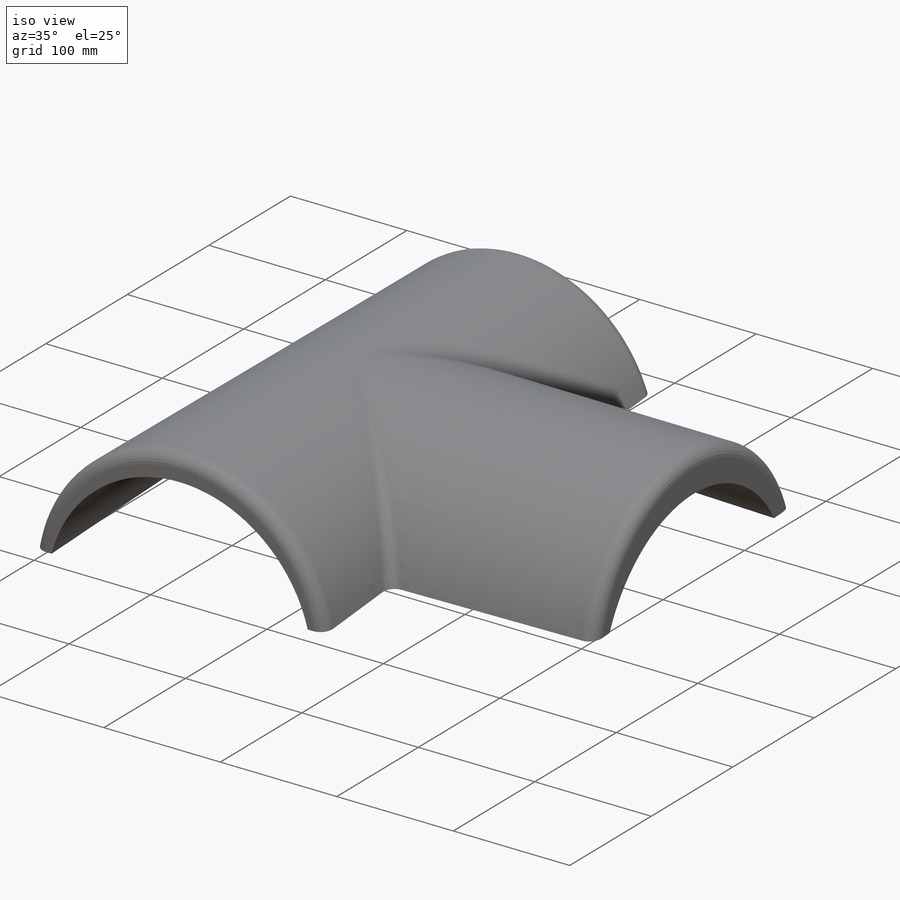
[diagram: iso view]
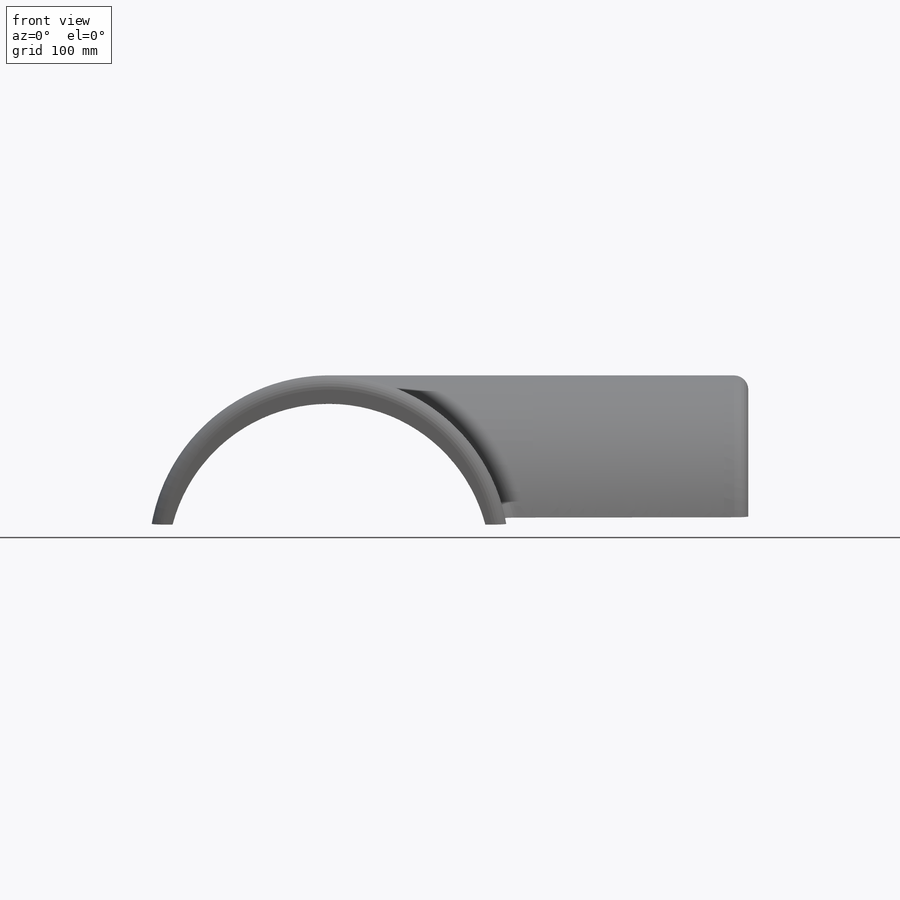
[diagram: front view]
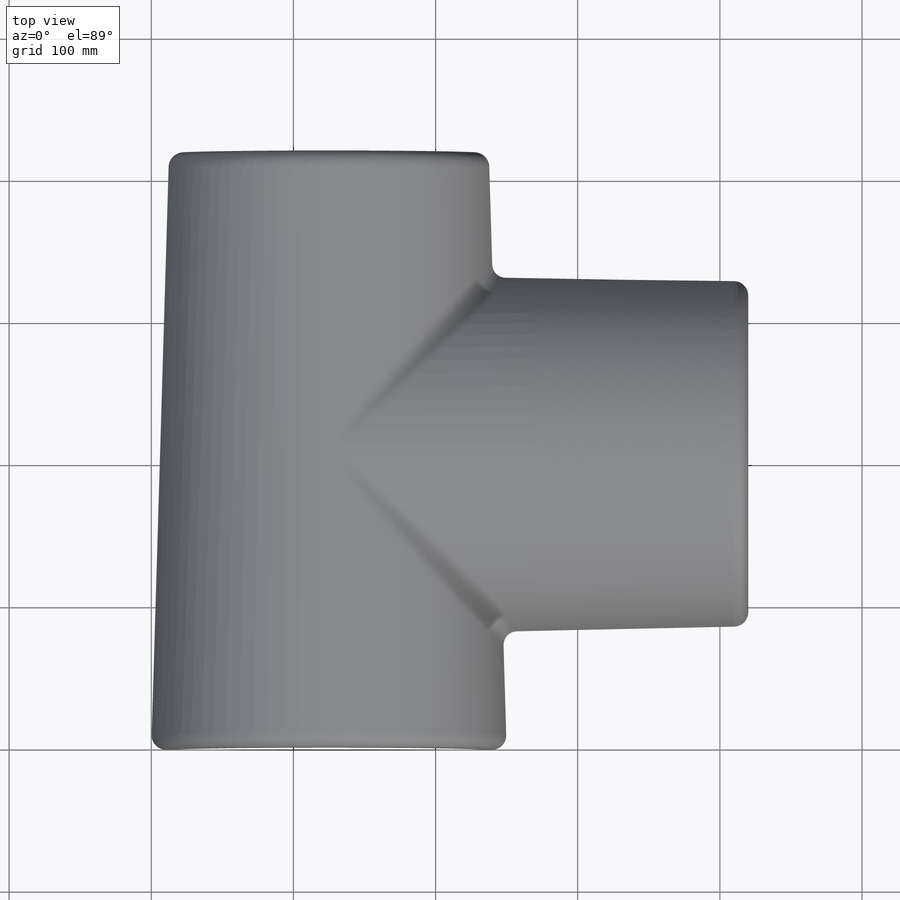
[diagram: top view]
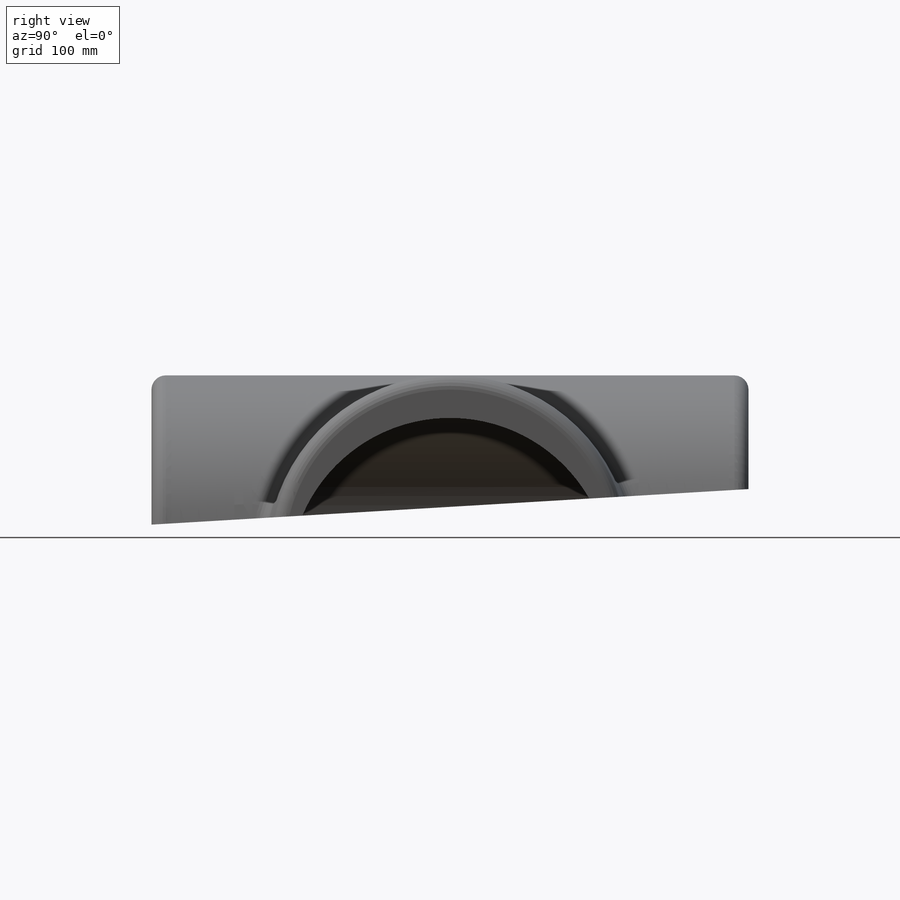
[diagram: right view]
SOLIDWORKS PART (.sldprt)
format: sldprt  version: not decoded by parser v0  size: 965,632 bytes
history: native  units: mm
features: sketch x13, plane x7, material x1, fillet x1, cut_extrude x1 (+14 scaffold rows collapsed)
feature tree (37):
  scaffold x14  (default folders/planes/origin — collapsed)
  material  "Materiál <není určen>"
  plane  "Přední rovina"
  plane  "Horní rovina"
  plane  "Pravá rovina"
  sketch  "Skica1"  dims[c1.D3=~126.904762mm c1.D1=250.0mm c1.D2=105.0mm c2.D3=20.0mm c2.D4=15.0mm]
  plane  "Rovina1"  Offset=420mm
  sketch  "Skica2"  dims[c1.D3=~110.919162mm c1.D1=225.0mm c1.D2=80.0mm c2.D3=20.0mm]
  plane  "Rovina2"  Offset=125mm
  sketch  "Skica3"
  plane  "Rovina3"  Offset=295mm
  sketch  "Skica4"  dims[c1.D4=~126.022727mm c1.D1=110.0mm c1.D2=250.0mm c1.D3=17.0mm c2.D4=30.0mm]
  sketch  "Skica5"  dims[c1.D3=~134.418335mm c1.D1=80.0mm c1.D2=12.0mm c2.D3=20.0mm]
  plane  "Rovina4"  Offset=210mm
  sketch  "Skica6"
  sketch  "Skica11"  dims[c1.D1=~126.885813mm c1.D2=~92.291868mm c1.D3=~209.998655mm c1.D4=210.0mm c1.D5=~321.256489mm c1.D6=~5.493564mm c1.D7=~19.12241mm c1.D8=85.0mm c1.D9=~41.885813mm c2.D6=~5.493564mm c2.D7=5.0mm]
  sketch  "Skica12"
  sketch  "Skica13"
  sketch  "Skica8"
  sketch  "Skica9"
  sketch  "Skica10"
  fillet  "Zaoblit2"  Radius=10mm
  sketch  "Skica14"
  cut_extrude  "Vysunout1"  [1 undecoded]
decode coverage: 6 of 15 modeling features carry decoded parameters
note: ~ marks probable driven/reference dimensions
note: 1 parameter value undecoded
note: suppression state not decoded; provenance and decode notes live in map.json
